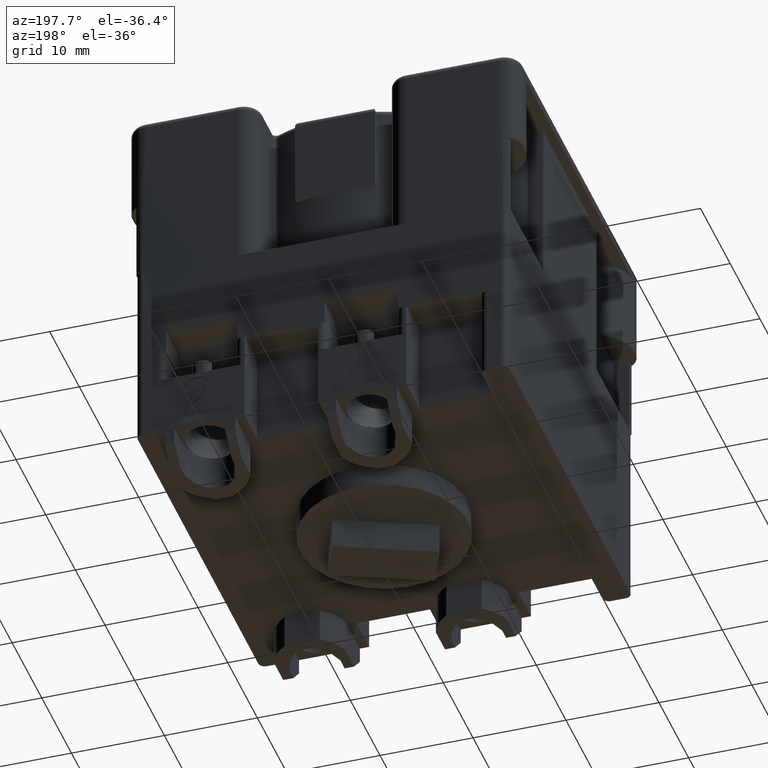
[diagram: clean part render]
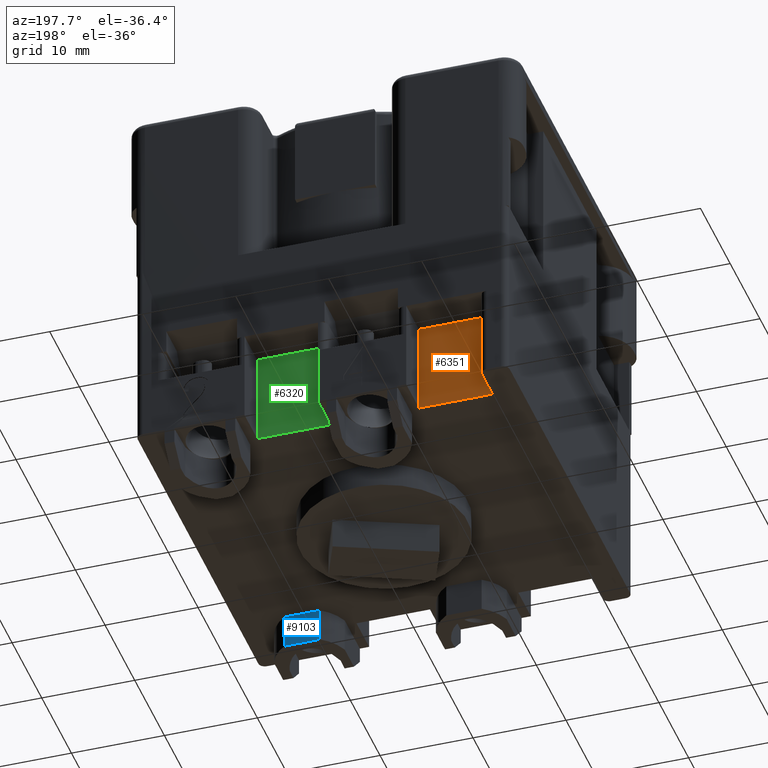
[diagram: same view with three faces highlighted in distinct colors, each labeled with its STEP entity id]
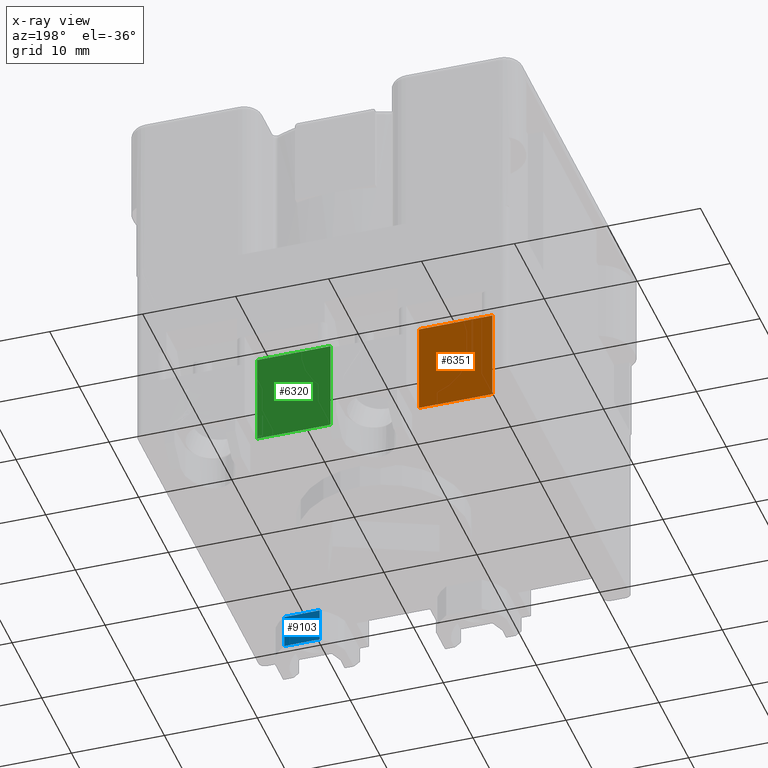
[diagram: x-ray of the same camera — body ghosted, the three highlighted faces saturated]
A machine part, auxiliary view with three faces highlighted in distinct colors.
The next image is the same camera in x-ray (body ghosted, the three faces saturated) — at least one of them is partly hidden behind the body in this view.
Their STEP definitions:

[orange] entity #6351 — the highlighted planar face has unit normal (-0, -1, 0).
#4387=CARTESIAN_POINT('',(-16.9999357241174,16.737138918159253,-39.700000000000003));
#4388=VERTEX_POINT('',#4387);
#4395=CARTESIAN_POINT('',(-9.099038781187051,16.73713894433347,-39.700000000000003));
#4396=VERTEX_POINT('',#4395);
#4397=CARTESIAN_POINT('',(-16.9999357241174,16.73713892637932,-39.700000000000003));
#4398=DIRECTION('',(1.0,-3.674867E-009,0.0));
#4399=VECTOR('',#4398,7.90089694293035);
#4400=LINE('',#4397,#4399);
#4401=EDGE_CURVE('',#4388,#4396,#4400,.T.);
#6321=CARTESIAN_POINT('',(-11.7501118188333,16.737138907086901,-41.000000000000007));
#6322=DIRECTION('',(-3.674866E-009,-1.0,0.0));
#6323=DIRECTION('',(0.0,0.0,-1.0));
#6324=AXIS2_PLACEMENT_3D('',#6321,#6322,#6323);
#6325=PLANE('',#6324);
#6326=CARTESIAN_POINT('',(-16.9999357241174,16.737138918159246,-29.700000000000003));
#6327=VERTEX_POINT('',#6326);
#6328=CARTESIAN_POINT('',(-16.9999357241174,16.737138909421397,-29.700000000000003));
#6329=DIRECTION('',(0.0,0.0,-1.0));
#6330=VECTOR('',#6329,10.0);
#6331=LINE('',#6328,#6330);
#6332=EDGE_CURVE('',#6327,#4388,#6331,.T.);
#6333=ORIENTED_EDGE('',*,*,#6332,.F.);
#6334=CARTESIAN_POINT('',(-9.099038781464577,16.73713894433434,-29.700000000000003));
#6335=VERTEX_POINT('',#6334);
#6336=CARTESIAN_POINT('',(-16.9999357241174,16.737138926379306,-29.700000000000003));
#6337=DIRECTION('',(1.0,-3.674866E-009,0.0));
#6338=VECTOR('',#6337,7.900896942652823);
#6339=LINE('',#6336,#6338);
#6340=EDGE_CURVE('',#6327,#6335,#6339,.T.);
#6341=ORIENTED_EDGE('',*,*,#6340,.T.);
#6342=CARTESIAN_POINT('',(-9.099038780914796,16.737138991708708,-29.700000000000003));
#6343=DIRECTION('',(0.0,0.0,-1.0));
#6344=VECTOR('',#6343,10.0);
#6345=LINE('',#6342,#6344);
#6346=EDGE_CURVE('',#6335,#4396,#6345,.T.);
#6347=ORIENTED_EDGE('',*,*,#6346,.T.);
#6348=ORIENTED_EDGE('',*,*,#4401,.F.);
#6349=EDGE_LOOP('',(#6333,#6341,#6347,#6348));
#6350=FACE_OUTER_BOUND('',#6349,.T.);
#6351=ADVANCED_FACE('',(#6350),#6325,.F.);

[blue] entity #9103 — the highlighted planar face has unit normal (0, -1, 0).
#4557=CARTESIAN_POINT('',(14.999819210711101,-13.456907583807423,-39.700000000000003));
#4558=VERTEX_POINT('',#4557);
#4566=CARTESIAN_POINT('',(11.200298100925499,-13.456907583807423,-39.700000000000003));
#4567=VERTEX_POINT('',#4566);
#4568=CARTESIAN_POINT('',(11.200298100925499,-13.4569075817212,-39.700000000000003));
#4569=DIRECTION('',(1.0,0.0,0.0));
#4570=VECTOR('',#4569,3.799521109785601);
#4571=LINE('',#4568,#4570);
#4572=EDGE_CURVE('',#4567,#4558,#4571,.T.);
#8755=CARTESIAN_POINT('',(14.999819210711101,-13.456907583807423,-43.399999999999999));
#8756=VERTEX_POINT('',#8755);
#8764=CARTESIAN_POINT('',(14.999819210711101,-13.456907585476399,-39.700000000000003));
#8765=DIRECTION('',(0.0,0.0,-1.0));
#8766=VECTOR('',#8765,3.699999999999989);
#8767=LINE('',#8764,#8766);
#8768=EDGE_CURVE('',#4558,#8756,#8767,.T.);
#9068=CARTESIAN_POINT('',(11.200298100925499,-13.456907583807423,-43.399999999950836));
#9069=VERTEX_POINT('',#9068);
#9070=CARTESIAN_POINT('',(11.200298100925499,-13.456907585476399,-39.700000000000003));
#9071=DIRECTION('',(0.0,0.0,-1.0));
#9072=VECTOR('',#9071,3.699999999950833);
#9073=LINE('',#9070,#9072);
#9074=EDGE_CURVE('',#4567,#9069,#9073,.T.);
#9087=CARTESIAN_POINT('',(11.200298100925599,-13.4569075817212,-43.399999999999999));
#9088=DIRECTION('',(0.0,-1.0,0.0));
#9089=DIRECTION('',(0.0,0.0,-1.0));
#9090=AXIS2_PLACEMENT_3D('',#9087,#9088,#9089);
#9091=PLANE('',#9090);
#9092=ORIENTED_EDGE('',*,*,#4572,.T.);
#9093=ORIENTED_EDGE('',*,*,#8768,.T.);
#9094=CARTESIAN_POINT('',(14.999819210711101,-13.4569075817212,-43.399999999999999));
#9095=DIRECTION('',(-1.0,0.0,0.0));
#9096=VECTOR('',#9095,3.799521109785601);
#9097=LINE('',#9094,#9096);
#9098=EDGE_CURVE('',#8756,#9069,#9097,.T.);
#9099=ORIENTED_EDGE('',*,*,#9098,.T.);
#9100=ORIENTED_EDGE('',*,*,#9074,.F.);
#9101=EDGE_LOOP('',(#9092,#9093,#9099,#9100));
#9102=FACE_OUTER_BOUND('',#9101,.T.);
#9103=ADVANCED_FACE('',(#9102),#9091,.F.);

[green] entity #6320 — the highlighted planar face has unit normal (-0, -1, 0).
#4451=CARTESIAN_POINT('',(0.400301342994518,16.737138925894019,-39.700000000000003));
#4452=VERTEX_POINT('',#4451);
#4459=CARTESIAN_POINT('',(8.300807040918471,16.737138949625042,-39.700000000000003));
#4460=VERTEX_POINT('',#4459);
#4461=CARTESIAN_POINT('',(0.400301342994518,16.737138926378471,-39.700000000000003));
#4462=DIRECTION('',(1.0,-3.674867E-009,0.0));
#4463=VECTOR('',#4462,7.900505697923955);
#4464=LINE('',#4461,#4463);
#4465=EDGE_CURVE('',#4452,#4460,#4464,.T.);
#6261=CARTESIAN_POINT('',(8.300807040688685,16.737138949625994,-29.700000000000003));
#6262=VERTEX_POINT('',#6261);
#6263=CARTESIAN_POINT('',(8.30080704114048,16.737139002334757,-29.700000000000003));
#6264=DIRECTION('',(0.0,0.0,-1.0));
#6265=VECTOR('',#6264,10.0);
#6266=LINE('',#6263,#6265);
#6267=EDGE_CURVE('',#6262,#4460,#6266,.T.);
#6286=CARTESIAN_POINT('',(0.400301342994524,16.737138925894005,-29.700000000000003));
#6287=VERTEX_POINT('',#6286);
#6294=CARTESIAN_POINT('',(0.400301342994214,16.737138926378428,-29.700000000000003));
#6295=DIRECTION('',(0.0,0.0,-1.0));
#6296=VECTOR('',#6295,10.000000000000007);
#6297=LINE('',#6294,#6296);
#6298=EDGE_CURVE('',#6287,#4452,#6297,.T.);
#6304=CARTESIAN_POINT('',(5.64988814909551,16.737138907086901,-41.000000000000007));
#6305=DIRECTION('',(-3.674866E-009,-1.0,0.0));
#6306=DIRECTION('',(0.0,0.0,-1.0));
#6307=AXIS2_PLACEMENT_3D('',#6304,#6305,#6306);
#6308=PLANE('',#6307);
#6309=ORIENTED_EDGE('',*,*,#6298,.F.);
#6310=CARTESIAN_POINT('',(0.400301342994524,16.737138926378432,-29.700000000000003));
#6311=DIRECTION('',(1.0,-3.674866E-009,0.0));
#6312=VECTOR('',#6311,7.900505697694161);
#6313=LINE('',#6310,#6312);
#6314=EDGE_CURVE('',#6287,#6262,#6313,.T.);
#6315=ORIENTED_EDGE('',*,*,#6314,.T.);
#6316=ORIENTED_EDGE('',*,*,#6267,.T.);
#6317=ORIENTED_EDGE('',*,*,#4465,.F.);
#6318=EDGE_LOOP('',(#6309,#6315,#6316,#6317));
#6319=FACE_OUTER_BOUND('',#6318,.T.);
#6320=ADVANCED_FACE('',(#6319),#6308,.F.);